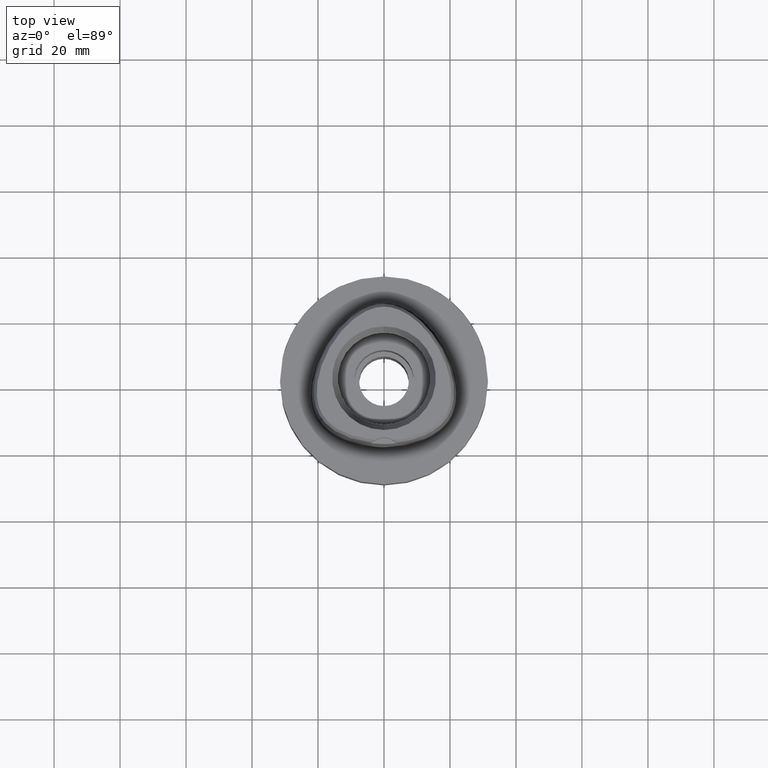
[diagram: clean part render]
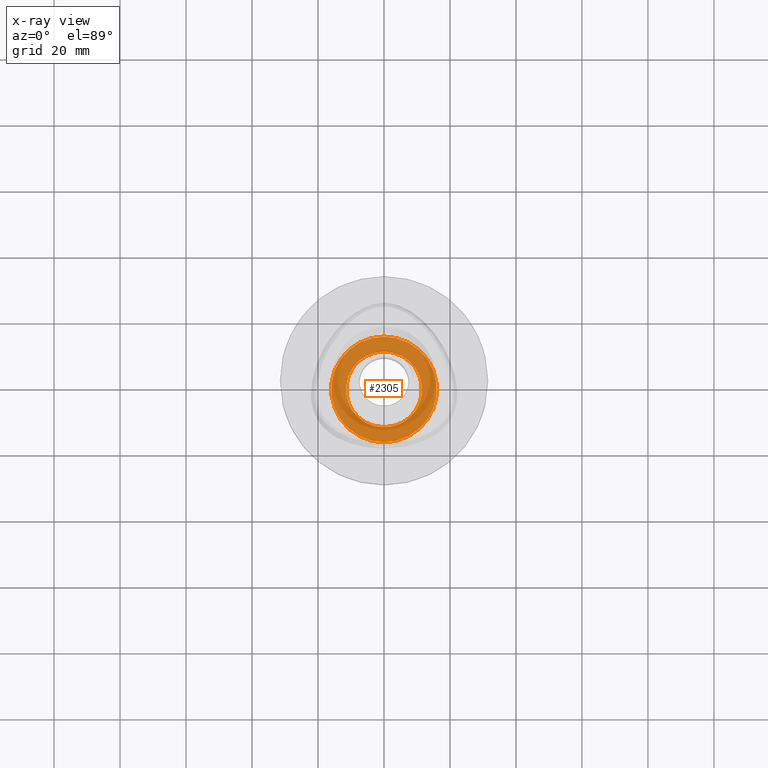
[diagram: x-ray — body ghosted, one internal face saturated and labeled with its STEP entity id]
A machine part, top view, then the same camera in x-ray: the body is ghosted and one INTERNAL B-rep face — a face not visible from any outside direction — is saturated and labeled: STEP entity #2305.
In plain terms, the highlighted planar face has unit normal (0, 0, -1).
Its self-contained STEP definition (entity closure, byte-faithful):
#274 = EDGE_LOOP ( 'NONE', ( #4905, #2429 ) ) ;
#305 = CIRCLE ( 'NONE', #779, 16.00000000000000000 ) ;
#464 = VERTEX_POINT ( 'NONE', #1552 ) ;
#533 = CARTESIAN_POINT ( 'NONE',  ( 0.0000000000000000000, -16.00000000000000000, -10.80000000000000071 ) ) ;
#563 = CIRCLE ( 'NONE', #1015, 16.00000000000000000 ) ;
#627 = FACE_OUTER_BOUND ( 'NONE', #4124, .T. ) ;
#779 = AXIS2_PLACEMENT_3D ( 'NONE', #4739, #1233, #3446 ) ;
#1015 = AXIS2_PLACEMENT_3D ( 'NONE', #3114, #3532, #1710 ) ;
#1233 = DIRECTION ( 'NONE',  ( 0.0000000000000000000, 0.0000000000000000000, -1.000000000000000000 ) ) ;
#1277 = EDGE_CURVE ( 'NONE', #4190, #1846, #2550, .T. ) ;
#1542 = EDGE_CURVE ( 'NONE', #464, #5237, #563, .T. ) ;
#1552 = CARTESIAN_POINT ( 'NONE',  ( 0.0000000000000000000, 16.00000000000000000, -10.80000000000000071 ) ) ;
#1611 = PLANE ( 'NONE',  #2371 ) ;
#1669 = DIRECTION ( 'NONE',  ( 0.0000000000000000000, -1.000000000000000000, 0.0000000000000000000 ) ) ;
#1710 = DIRECTION ( 'NONE',  ( 0.0000000000000000000, 1.000000000000000000, 0.0000000000000000000 ) ) ;
#1798 = CARTESIAN_POINT ( 'NONE',  ( 0.0000000000000000000, 0.0000000000000000000, -10.80000000000000071 ) ) ;
#1846 = VERTEX_POINT ( 'NONE', #4086 ) ;
#2086 = CARTESIAN_POINT ( 'NONE',  ( 0.0000000000000000000, 0.0000000000000000000, -10.80000000000000071 ) ) ;
#2208 = DIRECTION ( 'NONE',  ( 0.0000000000000000000, -1.000000000000000000, 0.0000000000000000000 ) ) ;
#2305 = ADVANCED_FACE ( 'NONE', ( #627, #2347 ), #1611, .F. ) ;
#2347 = FACE_BOUND ( 'NONE', #274, .T. ) ;
#2371 = AXIS2_PLACEMENT_3D ( 'NONE', #2086, #2406, #1669 ) ;
#2406 = DIRECTION ( 'NONE',  ( 0.0000000000000000000, 0.0000000000000000000, -1.000000000000000000 ) ) ;
#2429 = ORIENTED_EDGE ( 'NONE', *, *, #1277, .F. ) ;
#2540 = ORIENTED_EDGE ( 'NONE', *, *, #3023, .F. ) ;
#2550 = CIRCLE ( 'NONE', #3104, 11.50000000000000000 ) ;
#2595 = DIRECTION ( 'NONE',  ( 0.0000000000000000000, 0.0000000000000000000, 1.000000000000000000 ) ) ;
#2618 = CARTESIAN_POINT ( 'NONE',  ( 0.0000000000000000000, 0.0000000000000000000, -10.80000000000000071 ) ) ;
#2629 = EDGE_CURVE ( 'NONE', #1846, #4190, #4089, .T. ) ;
#3023 = EDGE_CURVE ( 'NONE', #5237, #464, #305, .T. ) ;
#3104 = AXIS2_PLACEMENT_3D ( 'NONE', #1798, #4728, #2208 ) ;
#3114 = CARTESIAN_POINT ( 'NONE',  ( 0.0000000000000000000, 0.0000000000000000000, -10.80000000000000071 ) ) ;
#3391 = CARTESIAN_POINT ( 'NONE',  ( 0.0000000000000000000, -11.50000000000000000, -10.80000000000000071 ) ) ;
#3446 = DIRECTION ( 'NONE',  ( 0.0000000000000000000, -1.000000000000000000, 0.0000000000000000000 ) ) ;
#3532 = DIRECTION ( 'NONE',  ( 0.0000000000000000000, 0.0000000000000000000, -1.000000000000000000 ) ) ;
#3592 = ORIENTED_EDGE ( 'NONE', *, *, #1542, .F. ) ;
#3832 = AXIS2_PLACEMENT_3D ( 'NONE', #2618, #2595, #4348 ) ;
#4086 = CARTESIAN_POINT ( 'NONE',  ( 0.0000000000000000000, 11.50000000000000000, -10.80000000000000071 ) ) ;
#4089 = CIRCLE ( 'NONE', #3832, 11.50000000000000000 ) ;
#4124 = EDGE_LOOP ( 'NONE', ( #3592, #2540 ) ) ;
#4190 = VERTEX_POINT ( 'NONE', #3391 ) ;
#4348 = DIRECTION ( 'NONE',  ( 0.0000000000000000000, 1.000000000000000000, 0.0000000000000000000 ) ) ;
#4728 = DIRECTION ( 'NONE',  ( 0.0000000000000000000, 0.0000000000000000000, 1.000000000000000000 ) ) ;
#4739 = CARTESIAN_POINT ( 'NONE',  ( 0.0000000000000000000, 0.0000000000000000000, -10.80000000000000071 ) ) ;
#4905 = ORIENTED_EDGE ( 'NONE', *, *, #2629, .F. ) ;
#5237 = VERTEX_POINT ( 'NONE', #533 ) ;